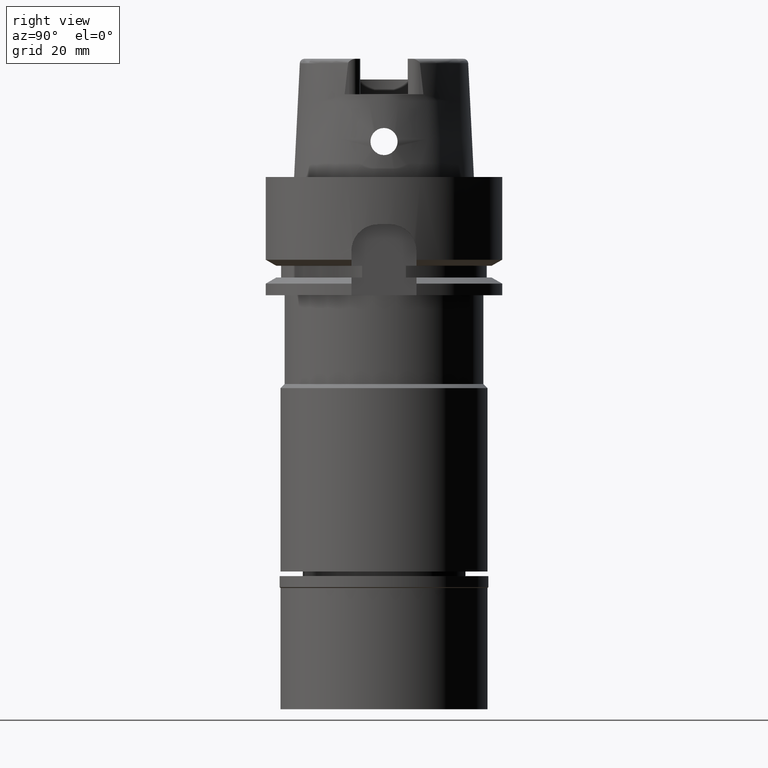
[diagram: clean part render]
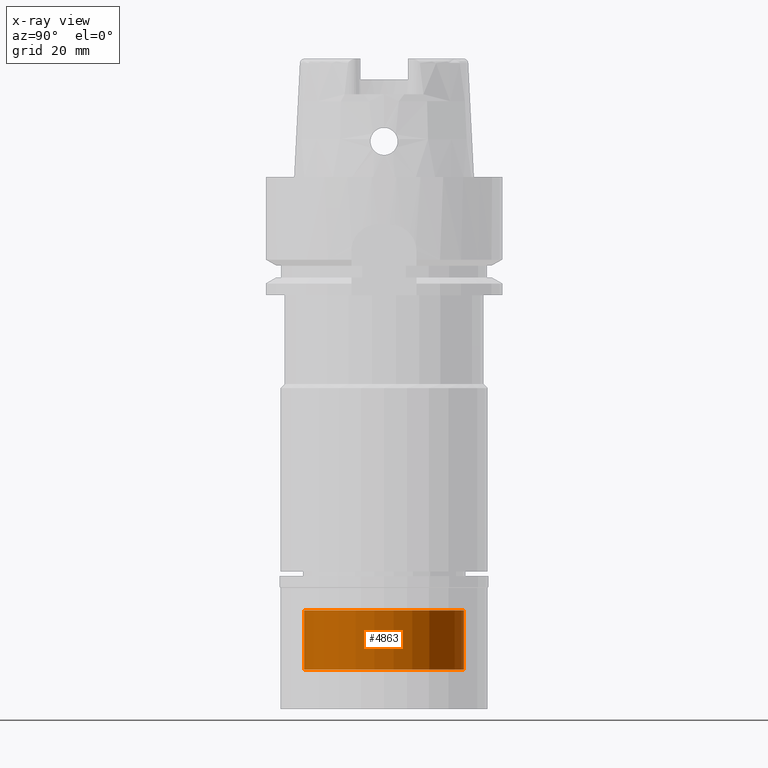
[diagram: x-ray — body ghosted, one internal face saturated and labeled with its STEP entity id]
A machine part, right view, then the same camera in x-ray: the body is ghosted and one INTERNAL B-rep face — a face not visible from any outside direction — is saturated and labeled: STEP entity #4863.
In plain terms, the highlighted cylindrical surface (partial cylindrical patch) has radius 13.5 mm, axis along (0, 0, -1).
Its self-contained STEP definition (entity closure, byte-faithful):
#148 = DIRECTION ( 'NONE',  ( 0.0000000000000000000, 0.0000000000000000000, -1.000000000000000000 ) ) ;
#239 = CARTESIAN_POINT ( 'NONE',  ( 0.0000000000000000000, 13.50000000000000000, -73.29999999999999716 ) ) ;
#297 = LINE ( 'NONE', #4073, #751 ) ;
#573 = EDGE_LOOP ( 'NONE', ( #4675, #4490, #1499, #3821 ) ) ;
#672 = CARTESIAN_POINT ( 'NONE',  ( 0.0000000000000000000, 1.532829166152999980E-14, -73.29999999999999716 ) ) ;
#751 = VECTOR ( 'NONE', #2015, 1000.000000000000000 ) ;
#940 = VERTEX_POINT ( 'NONE', #2214 ) ;
#1499 = ORIENTED_EDGE ( 'NONE', *, *, #5107, .T. ) ;
#1739 = VERTEX_POINT ( 'NONE', #4544 ) ;
#2015 = DIRECTION ( 'NONE',  ( 0.0000000000000000000, 0.0000000000000000000, -1.000000000000000000 ) ) ;
#2214 = CARTESIAN_POINT ( 'NONE',  ( 0.0000000000000000000, -13.50000000000000000, -83.29999999999999716 ) ) ;
#2337 = CIRCLE ( 'NONE', #4372, 13.50000000000000000 ) ;
#2404 = LINE ( 'NONE', #2514, #2917 ) ;
#2419 = EDGE_CURVE ( 'NONE', #4713, #940, #2404, .T. ) ;
#2514 = CARTESIAN_POINT ( 'NONE',  ( 0.0000000000000000000, -13.50000000000000000, -73.29999999999999716 ) ) ;
#2656 = EDGE_CURVE ( 'NONE', #5385, #4713, #3670, .T. ) ;
#2729 = DIRECTION ( 'NONE',  ( 0.0000000000000000000, -1.000000000000000000, 0.0000000000000000000 ) ) ;
#2905 = CARTESIAN_POINT ( 'NONE',  ( 0.0000000000000000000, -13.50000000000000000, -73.29999999999999716 ) ) ;
#2917 = VECTOR ( 'NONE', #4087, 1000.000000000000000 ) ;
#2986 = DIRECTION ( 'NONE',  ( 0.0000000000000000000, 0.0000000000000000000, -1.000000000000000000 ) ) ;
#3044 = DIRECTION ( 'NONE',  ( 0.0000000000000000000, 0.0000000000000000000, 1.000000000000000000 ) ) ;
#3050 = AXIS2_PLACEMENT_3D ( 'NONE', #4254, #2986, #5113 ) ;
#3670 = CIRCLE ( 'NONE', #3854, 13.50000000000000000 ) ;
#3821 = ORIENTED_EDGE ( 'NONE', *, *, #5201, .F. ) ;
#3854 = AXIS2_PLACEMENT_3D ( 'NONE', #672, #148, #4894 ) ;
#4073 = CARTESIAN_POINT ( 'NONE',  ( 0.0000000000000000000, 13.50000000000000000, -73.29999999999999716 ) ) ;
#4087 = DIRECTION ( 'NONE',  ( 0.0000000000000000000, 0.0000000000000000000, -1.000000000000000000 ) ) ;
#4225 = CYLINDRICAL_SURFACE ( 'NONE', #3050, 13.50000000000000000 ) ;
#4254 = CARTESIAN_POINT ( 'NONE',  ( 0.0000000000000000000, 1.532829166152999980E-14, 25.16499999999999915 ) ) ;
#4284 = CARTESIAN_POINT ( 'NONE',  ( 0.0000000000000000000, 1.532829166152999980E-14, -83.29999999999999716 ) ) ;
#4372 = AXIS2_PLACEMENT_3D ( 'NONE', #4284, #3044, #2729 ) ;
#4490 = ORIENTED_EDGE ( 'NONE', *, *, #2419, .T. ) ;
#4544 = CARTESIAN_POINT ( 'NONE',  ( 0.0000000000000000000, 13.50000000000000000, -83.29999999999999716 ) ) ;
#4675 = ORIENTED_EDGE ( 'NONE', *, *, #2656, .T. ) ;
#4713 = VERTEX_POINT ( 'NONE', #2905 ) ;
#4863 = ADVANCED_FACE ( 'NONE', ( #5030 ), #4225, .T. ) ;
#4894 = DIRECTION ( 'NONE',  ( 0.0000000000000000000, 1.000000000000000000, 0.0000000000000000000 ) ) ;
#5030 = FACE_OUTER_BOUND ( 'NONE', #573, .T. ) ;
#5107 = EDGE_CURVE ( 'NONE', #940, #1739, #2337, .T. ) ;
#5113 = DIRECTION ( 'NONE',  ( 0.0000000000000000000, -1.000000000000000000, 0.0000000000000000000 ) ) ;
#5201 = EDGE_CURVE ( 'NONE', #5385, #1739, #297, .T. ) ;
#5385 = VERTEX_POINT ( 'NONE', #239 ) ;